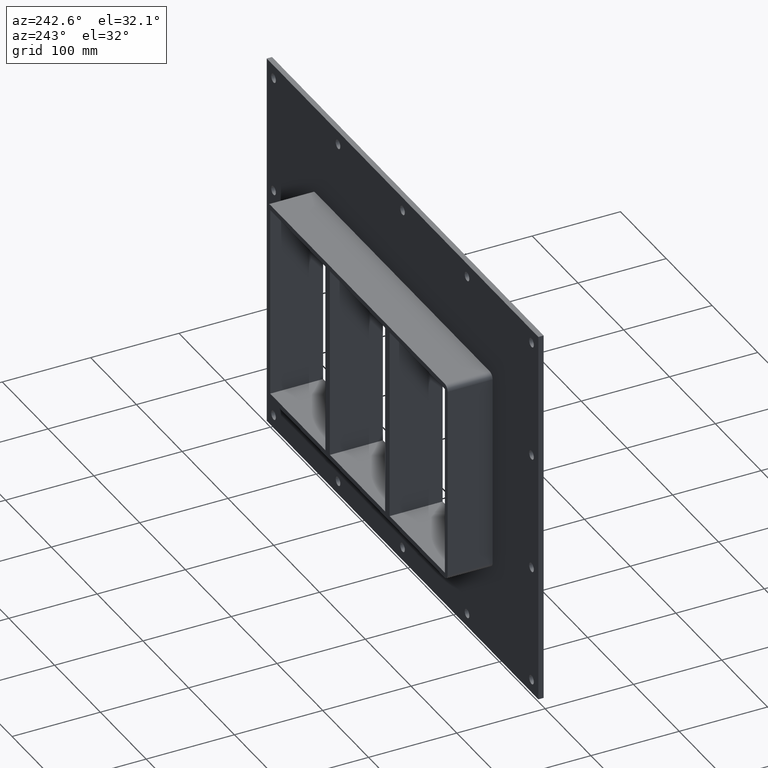
[diagram: clean part render]
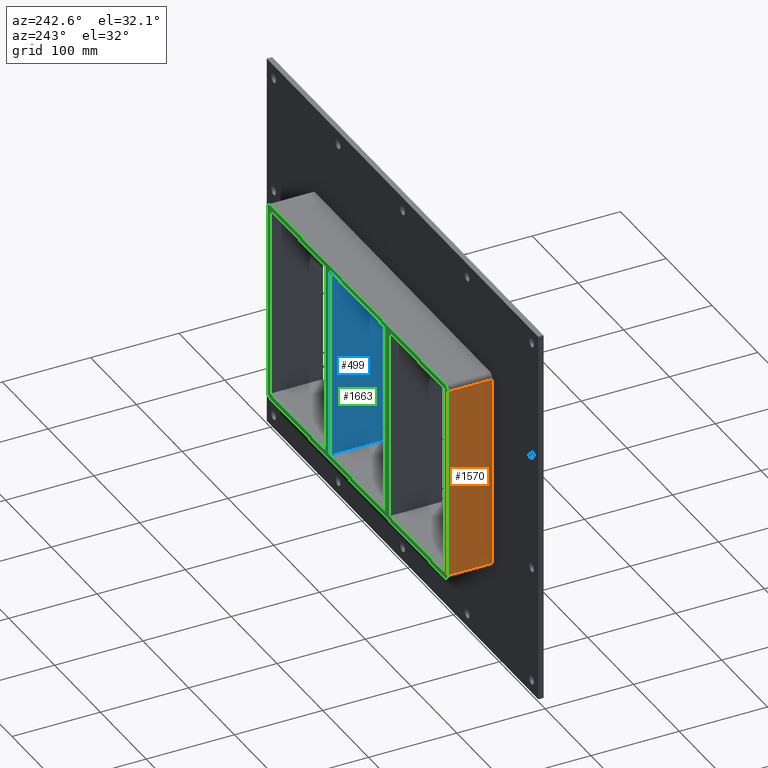
[diagram: same view with three faces highlighted in distinct colors, each labeled with its STEP entity id]
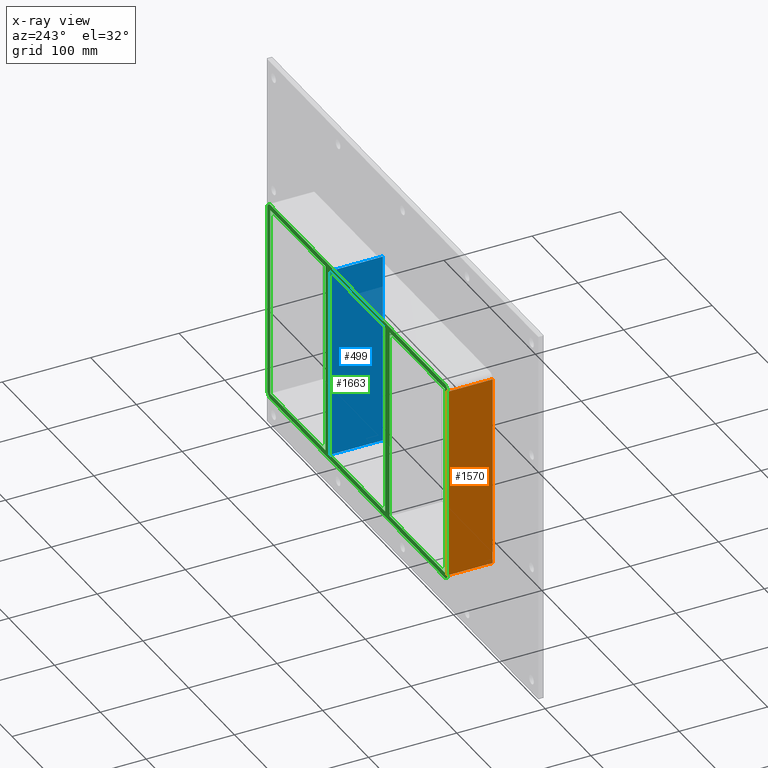
[diagram: x-ray of the same camera — body ghosted, the three highlighted faces saturated]
A machine part, auxiliary view with three faces highlighted in distinct colors.
The next image is the same camera in x-ray (body ghosted, the three faces saturated) — at least one of them is partly hidden behind the body in this view.
Their STEP definitions:

[orange] entity #1570 — the highlighted planar face has unit normal (-1, 0, 0).
#871=CARTESIAN_POINT('',(-196.75000000000006,6.000000000000001,-108.99999999999999));
#872=VERTEX_POINT('',#871);
#922=CARTESIAN_POINT('',(-196.75000000000006,6.000000000000001,108.99999999999999));
#923=VERTEX_POINT('',#922);
#931=CARTESIAN_POINT('',(-196.75000000000006,6.000000000000001,-108.99999999999999));
#932=DIRECTION('',(0.0,0.0,1.0));
#933=VECTOR('',#932,217.99999999999997);
#934=LINE('',#931,#933);
#935=EDGE_CURVE('',#872,#923,#934,.T.);
#1528=CARTESIAN_POINT('',(-196.75000000000006,57.0,-108.99999999999999));
#1529=VERTEX_POINT('',#1528);
#1530=CARTESIAN_POINT('',(-196.75000000000006,6.000000000000001,-108.99999999999999));
#1531=DIRECTION('',(0.0,1.0,0.0));
#1532=VECTOR('',#1531,51.0);
#1533=LINE('',#1530,#1532);
#1534=EDGE_CURVE('',#872,#1529,#1533,.T.);
#1547=CARTESIAN_POINT('',(-196.75000000000006,0.0,-115.0));
#1548=DIRECTION('',(-1.0,0.0,0.0));
#1549=DIRECTION('',(0.0,0.0,1.0));
#1550=AXIS2_PLACEMENT_3D('',#1547,#1548,#1549);
#1551=PLANE('',#1550);
#1552=ORIENTED_EDGE('',*,*,#935,.T.);
#1553=CARTESIAN_POINT('',(-196.75000000000006,57.0,108.99999999999999));
#1554=VERTEX_POINT('',#1553);
#1555=CARTESIAN_POINT('',(-196.75000000000006,57.0,108.99999999999999));
#1556=DIRECTION('',(0.0,-1.0,0.0));
#1557=VECTOR('',#1556,51.0);
#1558=LINE('',#1555,#1557);
#1559=EDGE_CURVE('',#1554,#923,#1558,.T.);
#1560=ORIENTED_EDGE('',*,*,#1559,.F.);
#1561=CARTESIAN_POINT('',(-196.75000000000006,57.0,-108.99999999999999));
#1562=DIRECTION('',(0.0,0.0,1.0));
#1563=VECTOR('',#1562,218.0);
#1564=LINE('',#1561,#1563);
#1565=EDGE_CURVE('',#1529,#1554,#1564,.T.);
#1566=ORIENTED_EDGE('',*,*,#1565,.F.);
#1567=ORIENTED_EDGE('',*,*,#1534,.F.);
#1568=EDGE_LOOP('',(#1552,#1560,#1566,#1567));
#1569=FACE_OUTER_BOUND('',#1568,.T.);
#1570=ADVANCED_FACE('',(#1569),#1551,.T.);

[blue] entity #499 — the highlighted planar face has unit normal (-1, 0, 0).
#460=CARTESIAN_POINT('',(60.249999999998671,-3.0,-108.99999999999999));
#461=DIRECTION('',(-1.0,0.0,0.0));
#462=DIRECTION('',(0.0,0.0,1.0));
#463=AXIS2_PLACEMENT_3D('',#460,#461,#462);
#464=PLANE('',#463);
#465=CARTESIAN_POINT('',(60.249999999998671,-3.0,-108.99999999999999));
#466=VERTEX_POINT('',#465);
#467=CARTESIAN_POINT('',(60.249999999998622,-3.0,109.00000000000003));
#468=VERTEX_POINT('',#467);
#469=CARTESIAN_POINT('',(60.249999999998671,-3.0,-108.99999999999999));
#470=DIRECTION('',(0.0,0.0,1.0));
#471=VECTOR('',#470,218.0);
#472=LINE('',#469,#471);
#473=EDGE_CURVE('',#466,#468,#472,.T.);
#474=ORIENTED_EDGE('',*,*,#473,.T.);
#475=CARTESIAN_POINT('',(60.249999999998622,57.0,109.00000000000003));
#476=VERTEX_POINT('',#475);
#477=CARTESIAN_POINT('',(60.249999999998607,57.000000000000007,109.00000000000003));
#478=DIRECTION('',(0.0,-1.0,0.0));
#479=VECTOR('',#478,60.000000000000007);
#480=LINE('',#477,#479);
#481=EDGE_CURVE('',#476,#468,#480,.T.);
#482=ORIENTED_EDGE('',*,*,#481,.F.);
#483=CARTESIAN_POINT('',(60.249999999998671,57.0,-108.99999999999999));
#484=VERTEX_POINT('',#483);
#485=CARTESIAN_POINT('',(60.249999999998671,57.0,-108.99999999999999));
#486=DIRECTION('',(0.0,0.0,1.0));
#487=VECTOR('',#486,218.0);
#488=LINE('',#485,#487);
#489=EDGE_CURVE('',#484,#476,#488,.T.);
#490=ORIENTED_EDGE('',*,*,#489,.F.);
#491=CARTESIAN_POINT('',(60.249999999998671,-3.0,-108.99999999999999));
#492=DIRECTION('',(0.0,1.0,0.0));
#493=VECTOR('',#492,60.000000000000007);
#494=LINE('',#491,#493);
#495=EDGE_CURVE('',#466,#484,#494,.T.);
#496=ORIENTED_EDGE('',*,*,#495,.F.);
#497=EDGE_LOOP('',(#474,#482,#490,#496));
#498=FACE_OUTER_BOUND('',#497,.T.);
#499=ADVANCED_FACE('',(#498),#464,.T.);

[green] entity #1663 — the highlighted planar face has unit normal (0, 1, 0).
#475=CARTESIAN_POINT('',(60.249999999998622,57.0,109.00000000000003));
#476=VERTEX_POINT('',#475);
#483=CARTESIAN_POINT('',(60.249999999998671,57.0,-108.99999999999999));
#484=VERTEX_POINT('',#483);
#485=CARTESIAN_POINT('',(60.249999999998671,57.0,-108.99999999999999));
#486=DIRECTION('',(0.0,0.0,1.0));
#487=VECTOR('',#486,218.0);
#488=LINE('',#485,#487);
#489=EDGE_CURVE('',#484,#476,#488,.T.);
#515=CARTESIAN_POINT('',(70.250000000003638,57.0,-108.99999999998425));
#516=VERTEX_POINT('',#515);
#523=CARTESIAN_POINT('',(70.250000000003638,57.0,109.00000000000003));
#524=VERTEX_POINT('',#523);
#525=CARTESIAN_POINT('',(70.250000000003638,57.0,109.00000000000003));
#526=DIRECTION('',(0.0,0.0,-1.0));
#527=VECTOR('',#526,217.99999999998425);
#528=LINE('',#525,#527);
#529=EDGE_CURVE('',#524,#516,#528,.T.);
#546=CARTESIAN_POINT('',(-60.249999999996362,57.0,-108.99999999998425));
#547=VERTEX_POINT('',#546);
#548=CARTESIAN_POINT('',(-60.249999999996362,57.0,-108.99999999999999));
#549=DIRECTION('',(1.0,0.0,0.0));
#550=VECTOR('',#549,120.49999999999504);
#551=LINE('',#548,#550);
#552=EDGE_CURVE('',#547,#484,#551,.T.);
#585=CARTESIAN_POINT('',(190.75000000000011,57.0,-108.99999999999999));
#586=VERTEX_POINT('',#585);
#593=CARTESIAN_POINT('',(70.250000000003652,57.0,-108.99999999999999));
#594=DIRECTION('',(1.0,0.0,0.0));
#595=VECTOR('',#594,120.49999999999646);
#596=LINE('',#593,#595);
#597=EDGE_CURVE('',#516,#586,#596,.T.);
#608=CARTESIAN_POINT('',(190.75000000000011,57.0,109.00000000000003));
#609=VERTEX_POINT('',#608);
#610=CARTESIAN_POINT('',(190.75000000000011,57.0,109.00000000000003));
#611=DIRECTION('',(-1.0,0.0,0.0));
#612=VECTOR('',#611,120.49999999999646);
#613=LINE('',#610,#612);
#614=EDGE_CURVE('',#609,#524,#613,.T.);
#647=CARTESIAN_POINT('',(-60.249999999996362,57.0,109.00000000000003));
#648=VERTEX_POINT('',#647);
#655=CARTESIAN_POINT('',(60.249999999998622,57.0,109.00000000000003));
#656=DIRECTION('',(-1.0,0.0,0.0));
#657=VECTOR('',#656,120.49999999999498);
#658=LINE('',#655,#657);
#659=EDGE_CURVE('',#476,#648,#658,.T.);
#679=CARTESIAN_POINT('',(-70.250000000001393,57.0,109.00000000000003));
#680=VERTEX_POINT('',#679);
#687=CARTESIAN_POINT('',(-70.250000000001336,57.0,-108.99999999999999));
#688=VERTEX_POINT('',#687);
#689=CARTESIAN_POINT('',(-70.250000000001336,57.0,-108.99999999999999));
#690=DIRECTION('',(0.0,0.0,1.0));
#691=VECTOR('',#690,218.0);
#692=LINE('',#689,#691);
#693=EDGE_CURVE('',#688,#680,#692,.T.);
#716=CARTESIAN_POINT('',(-60.249999999996362,57.0,109.00000000000003));
#717=DIRECTION('',(0.0,0.0,-1.0));
#718=VECTOR('',#717,217.99999999998425);
#719=LINE('',#716,#718);
#720=EDGE_CURVE('',#648,#547,#719,.T.);
#732=CARTESIAN_POINT('',(-190.75000000000003,57.0,-108.99999999999999));
#733=VERTEX_POINT('',#732);
#734=CARTESIAN_POINT('',(-190.75,57.0,-108.99999999999999));
#735=DIRECTION('',(1.0,0.0,0.0));
#736=VECTOR('',#735,120.49999999999866);
#737=LINE('',#734,#736);
#738=EDGE_CURVE('',#733,#688,#737,.T.);
#771=CARTESIAN_POINT('',(-190.75000000000003,57.0,109.00000000000003));
#772=VERTEX_POINT('',#771);
#779=CARTESIAN_POINT('',(-70.250000000001393,57.0,109.00000000000003));
#780=DIRECTION('',(-1.0,0.0,0.0));
#781=VECTOR('',#780,120.49999999999864);
#782=LINE('',#779,#781);
#783=EDGE_CURVE('',#680,#772,#782,.T.);
#1166=CARTESIAN_POINT('',(-190.75000000000003,57.0,109.0));
#1167=DIRECTION('',(0.0,0.0,-1.0));
#1168=VECTOR('',#1167,218.0);
#1169=LINE('',#1166,#1168);
#1170=EDGE_CURVE('',#772,#733,#1169,.T.);
#1220=CARTESIAN_POINT('',(196.75000000000006,57.0,109.0));
#1221=VERTEX_POINT('',#1220);
#1228=CARTESIAN_POINT('',(190.75000000000003,57.0,115.0));
#1229=VERTEX_POINT('',#1228);
#1230=CARTESIAN_POINT('',(190.75000000000003,57.0,109.0));
#1231=DIRECTION('',(0.0,-1.0,0.0));
#1232=DIRECTION('',(0.70710678118655,0.0,0.707106781186545));
#1233=AXIS2_PLACEMENT_3D('',#1230,#1231,#1232);
#1234=CIRCLE('',#1233,6.000000000000001);
#1235=EDGE_CURVE('',#1221,#1229,#1234,.T.);
#1276=CARTESIAN_POINT('',(196.75000000000006,57.0,-108.99999999999999));
#1277=VERTEX_POINT('',#1276);
#1284=CARTESIAN_POINT('',(196.75000000000006,57.0,109.0));
#1285=DIRECTION('',(0.0,0.0,-1.0));
#1286=VECTOR('',#1285,218.0);
#1287=LINE('',#1284,#1286);
#1288=EDGE_CURVE('',#1221,#1277,#1287,.T.);
#1349=CARTESIAN_POINT('',(190.75000000000003,57.0,-115.0));
#1350=VERTEX_POINT('',#1349);
#1357=CARTESIAN_POINT('',(190.75000000000003,57.0,-108.99999999999999));
#1358=DIRECTION('',(0.0,-1.0,0.0));
#1359=DIRECTION('',(0.707106781186548,0.0,-0.707106781186548));
#1360=AXIS2_PLACEMENT_3D('',#1357,#1358,#1359);
#1361=CIRCLE('',#1360,6.000000000000002);
#1362=EDGE_CURVE('',#1350,#1277,#1361,.T.);
#1423=CARTESIAN_POINT('',(-190.75000000000003,57.0,-115.0));
#1424=VERTEX_POINT('',#1423);
#1431=CARTESIAN_POINT('',(190.75000000000006,57.0,-115.0));
#1432=DIRECTION('',(-1.0,0.0,0.0));
#1433=VECTOR('',#1432,381.50000000000006);
#1434=LINE('',#1431,#1433);
#1435=EDGE_CURVE('',#1350,#1424,#1434,.T.);
#1528=CARTESIAN_POINT('',(-196.75000000000006,57.0,-108.99999999999999));
#1529=VERTEX_POINT('',#1528);
#1536=CARTESIAN_POINT('',(-190.75000000000003,57.0,-108.99999999999999));
#1537=DIRECTION('',(0.0,-1.0,0.0));
#1538=DIRECTION('',(-0.707106781186548,0.0,-0.707106781186548));
#1539=AXIS2_PLACEMENT_3D('',#1536,#1537,#1538);
#1540=CIRCLE('',#1539,6.000000000000002);
#1541=EDGE_CURVE('',#1529,#1424,#1540,.T.);
#1553=CARTESIAN_POINT('',(-196.75000000000006,57.0,108.99999999999999));
#1554=VERTEX_POINT('',#1553);
#1561=CARTESIAN_POINT('',(-196.75000000000006,57.0,-108.99999999999999));
#1562=DIRECTION('',(0.0,0.0,1.0));
#1563=VECTOR('',#1562,218.0);
#1564=LINE('',#1561,#1563);
#1565=EDGE_CURVE('',#1529,#1554,#1564,.T.);
#1577=CARTESIAN_POINT('',(-190.75000000000003,57.0,115.0));
#1578=VERTEX_POINT('',#1577);
#1585=CARTESIAN_POINT('',(-190.75000000000003,57.0,108.99999999999999));
#1586=DIRECTION('',(0.0,-1.0,0.0));
#1587=DIRECTION('',(-0.707106781186548,0.0,0.707106781186548));
#1588=AXIS2_PLACEMENT_3D('',#1585,#1586,#1587);
#1589=CIRCLE('',#1588,6.000000000000002);
#1590=EDGE_CURVE('',#1578,#1554,#1589,.T.);
#1603=CARTESIAN_POINT('',(-190.75000000000006,57.0,115.0));
#1604=DIRECTION('',(1.0,0.0,0.0));
#1605=VECTOR('',#1604,381.50000000000006);
#1606=LINE('',#1603,#1605);
#1607=EDGE_CURVE('',#1578,#1229,#1606,.T.);
#1621=CARTESIAN_POINT('',(190.75000000000011,57.0,-108.99999999999999));
#1622=DIRECTION('',(0.0,0.0,1.0));
#1623=VECTOR('',#1622,218.0);
#1624=LINE('',#1621,#1623);
#1625=EDGE_CURVE('',#586,#609,#1624,.T.);
#1630=CARTESIAN_POINT('',(0.0,57.0,0.0));
#1631=DIRECTION('',(0.0,1.0,0.0));
#1632=DIRECTION('',(0.0,0.0,1.0));
#1633=AXIS2_PLACEMENT_3D('',#1630,#1631,#1632);
#1634=PLANE('',#1633);
#1635=ORIENTED_EDGE('',*,*,#1362,.F.);
#1636=ORIENTED_EDGE('',*,*,#1435,.T.);
#1637=ORIENTED_EDGE('',*,*,#1541,.F.);
#1638=ORIENTED_EDGE('',*,*,#1565,.T.);
#1639=ORIENTED_EDGE('',*,*,#1590,.F.);
#1640=ORIENTED_EDGE('',*,*,#1607,.T.);
#1641=ORIENTED_EDGE('',*,*,#1235,.F.);
#1642=ORIENTED_EDGE('',*,*,#1288,.T.);
#1643=EDGE_LOOP('',(#1635,#1636,#1637,#1638,#1639,#1640,#1641,#1642));
#1644=FACE_OUTER_BOUND('',#1643,.T.);
#1645=ORIENTED_EDGE('',*,*,#597,.T.);
#1646=ORIENTED_EDGE('',*,*,#1625,.T.);
#1647=ORIENTED_EDGE('',*,*,#614,.T.);
#1648=ORIENTED_EDGE('',*,*,#529,.T.);
#1649=EDGE_LOOP('',(#1645,#1646,#1647,#1648));
#1650=FACE_BOUND('',#1649,.T.);
#1651=ORIENTED_EDGE('',*,*,#489,.T.);
#1652=ORIENTED_EDGE('',*,*,#659,.T.);
#1653=ORIENTED_EDGE('',*,*,#720,.T.);
#1654=ORIENTED_EDGE('',*,*,#552,.T.);
#1655=EDGE_LOOP('',(#1651,#1652,#1653,#1654));
#1656=FACE_BOUND('',#1655,.T.);
#1657=ORIENTED_EDGE('',*,*,#693,.T.);
#1658=ORIENTED_EDGE('',*,*,#783,.T.);
#1659=ORIENTED_EDGE('',*,*,#1170,.T.);
#1660=ORIENTED_EDGE('',*,*,#738,.T.);
#1661=EDGE_LOOP('',(#1657,#1658,#1659,#1660));
#1662=FACE_BOUND('',#1661,.T.);
#1663=ADVANCED_FACE('',(#1644,#1650,#1656,#1662),#1634,.T.);